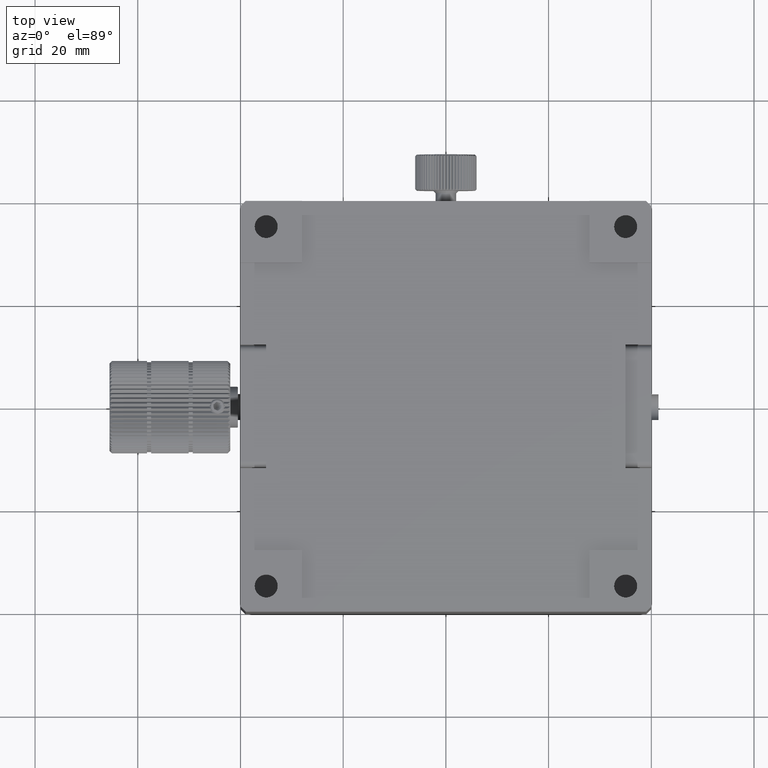
[diagram: clean part render]
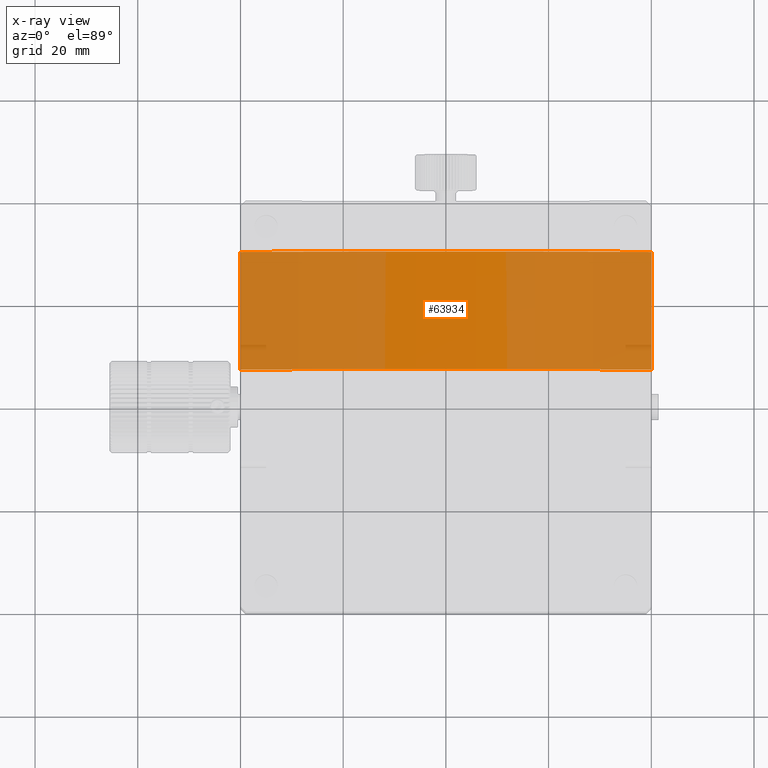
[diagram: x-ray — body ghosted, one internal face saturated and labeled with its STEP entity id]
A machine part, top view, then the same camera in x-ray: the body is ghosted and one INTERNAL B-rep face — a face not visible from any outside direction — is saturated and labeled: STEP entity #63934.
In plain terms, the highlighted cylindrical surface (partial cylindrical patch) has radius 145 mm, axis along (0, 1, 0).
Its self-contained STEP definition (entity closure, byte-faithful):
#1096 = DIRECTION ( 'NONE',  ( 0.000000000000000000, 1.000000000000000000, 0.000000000000000000 ) ) ;
#6641 = CYLINDRICAL_SURFACE ( 'NONE', #7430, 145.0000000000001421 ) ;
#7066 = DIRECTION ( 'NONE',  ( 0.000000000000000000, 0.000000000000000000, 1.000000000000000000 ) ) ;
#7430 = AXIS2_PLACEMENT_3D ( 'NONE', #13666, #63558, #7066 ) ;
#10009 = CARTESIAN_POINT ( 'NONE',  ( 39.99999999999997158, -40.00000000000004263, 139.3735986476636413 ) ) ;
#13666 = CARTESIAN_POINT ( 'NONE',  ( -3.851859888774471706E-30, 40.00000000000003553, 1.387778780781445676E-14 ) ) ;
#16770 = CIRCLE ( 'NONE', #60206, 145.0000000000001421 ) ;
#21976 = LINE ( 'NONE', #10009, #58695 ) ;
#22330 = ORIENTED_EDGE ( 'NONE', *, *, #64674, .F. ) ;
#27241 = AXIS2_PLACEMENT_3D ( 'NONE', #78674, #79905, #73294 ) ;
#28823 = ORIENTED_EDGE ( 'NONE', *, *, #72512, .F. ) ;
#29272 = EDGE_LOOP ( 'NONE', ( #31590, #22330, #28823, #60347 ) ) ;
#30398 = DIRECTION ( 'NONE',  ( 0.000000000000000000, 1.000000000000000000, -0.000000000000000000 ) ) ;
#31590 = ORIENTED_EDGE ( 'NONE', *, *, #71326, .F. ) ;
#32165 = CARTESIAN_POINT ( 'NONE',  ( 39.99999999999993605, 7.500000000000000000, 139.3735986476636697 ) ) ;
#33065 = CARTESIAN_POINT ( 'NONE',  ( -40.00000000000002842, 7.500000000000000000, 139.3735986476636697 ) ) ;
#34701 = VECTOR ( 'NONE', #30398, 1000.000000000000000 ) ;
#35022 = CARTESIAN_POINT ( 'NONE',  ( 39.99999999999997158, 30.40000000000003411, 139.3735986476636697 ) ) ;
#37691 = VERTEX_POINT ( 'NONE', #35022 ) ;
#37820 = CARTESIAN_POINT ( 'NONE',  ( -40.00000000000002842, -40.00000000000004263, 139.3735986476636697 ) ) ;
#40953 = DIRECTION ( 'NONE',  ( -0.000000000000000000, -1.000000000000000000, -0.000000000000000000 ) ) ;
#50007 = VERTEX_POINT ( 'NONE', #33065 ) ;
#50548 = LINE ( 'NONE', #37820, #34701 ) ;
#53788 = VERTEX_POINT ( 'NONE', #58903 ) ;
#54849 = CIRCLE ( 'NONE', #27241, 145.0000000000001421 ) ;
#57598 = CARTESIAN_POINT ( 'NONE',  ( -3.851859888774471706E-30, 7.500000000000000000, 1.387778780781445676E-14 ) ) ;
#58695 = VECTOR ( 'NONE', #40953, 1000.000000000000000 ) ;
#58903 = CARTESIAN_POINT ( 'NONE',  ( -40.00000000000002842, 30.40000000000003411, 139.3735986476636413 ) ) ;
#60206 = AXIS2_PLACEMENT_3D ( 'NONE', #57598, #1096, #77388 ) ;
#60347 = ORIENTED_EDGE ( 'NONE', *, *, #67855, .T. ) ;
#63144 = FACE_OUTER_BOUND ( 'NONE', #29272, .T. ) ;
#63558 = DIRECTION ( 'NONE',  ( 0.000000000000000000, 1.000000000000000000, 0.000000000000000000 ) ) ;
#63934 = ADVANCED_FACE ( 'NONE', ( #63144 ), #6641, .T. ) ;
#64674 = EDGE_CURVE ( 'NONE', #53788, #37691, #54849, .T. ) ;
#67855 = EDGE_CURVE ( 'NONE', #50007, #73474, #16770, .T. ) ;
#71326 = EDGE_CURVE ( 'NONE', #37691, #73474, #21976, .T. ) ;
#72512 = EDGE_CURVE ( 'NONE', #50007, #53788, #50548, .T. ) ;
#73294 = DIRECTION ( 'NONE',  ( 0.000000000000000000, 0.000000000000000000, 1.000000000000000000 ) ) ;
#73474 = VERTEX_POINT ( 'NONE', #32165 ) ;
#77388 = DIRECTION ( 'NONE',  ( 0.000000000000000000, 0.000000000000000000, 1.000000000000000000 ) ) ;
#78674 = CARTESIAN_POINT ( 'NONE',  ( -3.851859888774471706E-30, 30.40000000000003766, 1.387778780781445676E-14 ) ) ;
#79905 = DIRECTION ( 'NONE',  ( 0.000000000000000000, 1.000000000000000000, 0.000000000000000000 ) ) ;